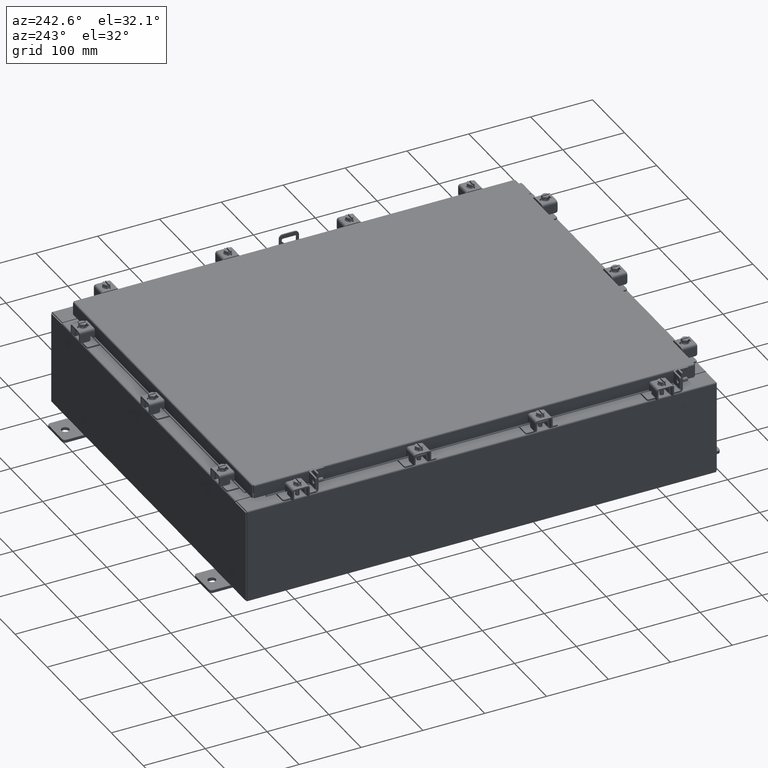
[diagram: clean part render]
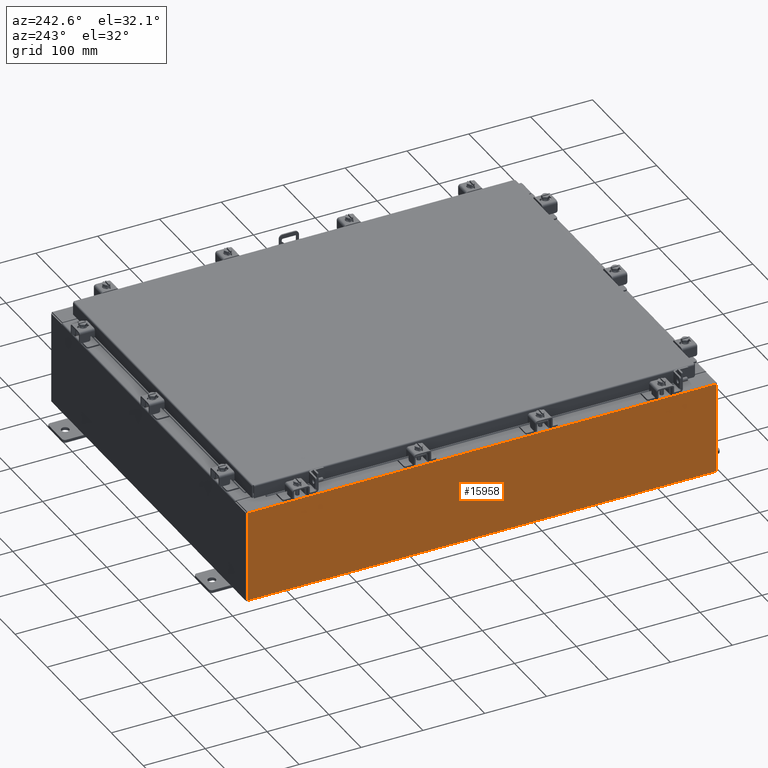
[diagram: same view with one face highlighted and labeled with its STEP entity id]
A machine part, auxiliary view. The second image highlights one B-rep face of the part: STEP entity #15958.
In plain terms, the highlighted planar face has unit normal (1, 0, 0).
Its self-contained STEP definition (entity closure, byte-faithful):
#83 = CARTESIAN_POINT ( 'NONE',  ( -12.00000000000002500, -14.92530000000000000, 5.837599999999999200 ) ) ;
#192 = LINE ( 'NONE', #7106, #9101 ) ;
#858 = EDGE_CURVE ( 'NONE', #17798, #23045, #9048, .T. ) ;
#1494 = PLANE ( 'NONE',  #15574 ) ;
#1805 = VERTEX_POINT ( 'NONE', #17810 ) ;
#3354 = ORIENTED_EDGE ( 'NONE', *, *, #20365, .F. ) ;
#3480 = VECTOR ( 'NONE', #14032, 39.37007874015748100 ) ;
#3738 = EDGE_LOOP ( 'NONE', ( #19995, #22299, #3354, #18719 ) ) ;
#5106 = DIRECTION ( 'NONE',  ( 1.000000000000000000, 0.0000000000000000000, 3.319545939341922800E-015 ) ) ;
#5483 = CARTESIAN_POINT ( 'NONE',  ( -12.00000000000002500, -14.92530000000000000, 5.837599999999999200 ) ) ;
#5770 = CARTESIAN_POINT ( 'NONE',  ( -12.00000000000002500, 14.92530000000000000, 5.837599999999999200 ) ) ;
#6083 = CARTESIAN_POINT ( 'NONE',  ( -12.00000000000000500, 14.92530000000000000, 0.01299999999999985900 ) ) ;
#6397 = VERTEX_POINT ( 'NONE', #6083 ) ;
#7106 = CARTESIAN_POINT ( 'NONE',  ( -12.00000000000000500, 14.92530000000000000, 0.01299999999999986400 ) ) ;
#7641 = LINE ( 'NONE', #22969, #3480 ) ;
#7787 = CARTESIAN_POINT ( 'NONE',  ( -12.00000000000000500, 14.92530000000000000, -4.009536492811466100E-014 ) ) ;
#8522 = VECTOR ( 'NONE', #15418, 39.37007874015748100 ) ;
#9048 = LINE ( 'NONE', #83, #8522 ) ;
#9101 = VECTOR ( 'NONE', #19650, 39.37007874015748100 ) ;
#12578 = EDGE_CURVE ( 'NONE', #23045, #6397, #14097, .T. ) ;
#14032 = DIRECTION ( 'NONE',  ( -3.319545939341922800E-015, 0.0000000000000000000, 1.000000000000000000 ) ) ;
#14070 = EDGE_CURVE ( 'NONE', #1805, #17798, #7641, .T. ) ;
#14097 = LINE ( 'NONE', #7787, #22514 ) ;
#15418 = DIRECTION ( 'NONE',  ( 0.0000000000000000000, 1.000000000000000000, 0.0000000000000000000 ) ) ;
#15574 = AXIS2_PLACEMENT_3D ( 'NONE', #21157, #5106, #17603 ) ;
#15958 = ADVANCED_FACE ( 'NONE', ( #17700 ), #1494, .F. ) ;
#17603 = DIRECTION ( 'NONE',  ( 3.319545939341922800E-015, 0.0000000000000000000, -1.000000000000000000 ) ) ;
#17700 = FACE_OUTER_BOUND ( 'NONE', #3738, .T. ) ;
#17798 = VERTEX_POINT ( 'NONE', #5483 ) ;
#17810 = CARTESIAN_POINT ( 'NONE',  ( -12.00000000000000500, -14.92530000000000000, 0.01299999999999986400 ) ) ;
#18523 = DIRECTION ( 'NONE',  ( 3.319545939341922800E-015, 0.0000000000000000000, -1.000000000000000000 ) ) ;
#18719 = ORIENTED_EDGE ( 'NONE', *, *, #14070, .T. ) ;
#19650 = DIRECTION ( 'NONE',  ( -0.0000000000000000000, 1.000000000000000000, -0.0000000000000000000 ) ) ;
#19995 = ORIENTED_EDGE ( 'NONE', *, *, #858, .T. ) ;
#20365 = EDGE_CURVE ( 'NONE', #1805, #6397, #192, .T. ) ;
#21157 = CARTESIAN_POINT ( 'NONE',  ( -12.00000000000000500, 0.0000000000000000000, -4.009536492811466100E-014 ) ) ;
#22299 = ORIENTED_EDGE ( 'NONE', *, *, #12578, .T. ) ;
#22514 = VECTOR ( 'NONE', #18523, 39.37007874015748100 ) ;
#22969 = CARTESIAN_POINT ( 'NONE',  ( -12.00000000000000500, -14.92530000000000000, -4.009536492811466100E-014 ) ) ;
#23045 = VERTEX_POINT ( 'NONE', #5770 ) ;